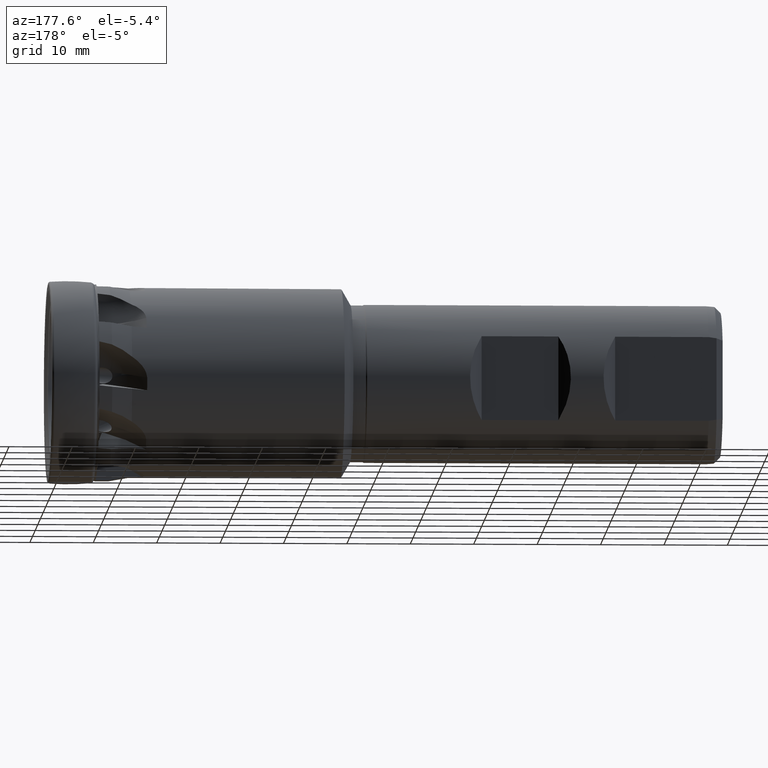
[diagram: clean part render]
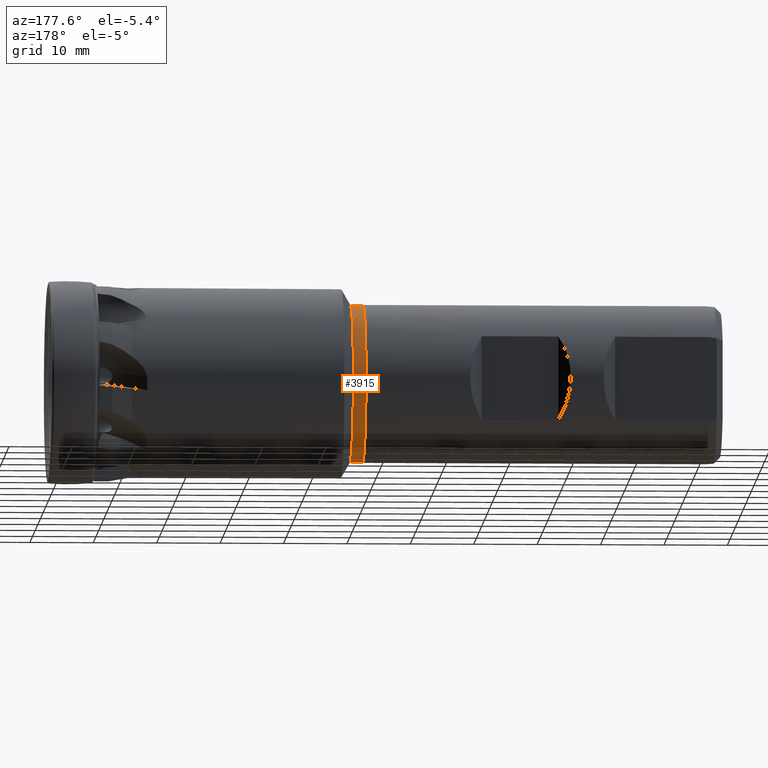
[diagram: same view with one face highlighted and labeled with its STEP entity id]
A machine part, auxiliary view. The second image highlights one B-rep face of the part: STEP entity #3915.
In plain terms, the highlighted cylindrical surface (partial cylindrical patch) has radius 12.4 mm, axis along (1, -0, -0).
Its self-contained STEP definition (entity closure, byte-faithful):
#45 = VECTOR ( 'NONE', #5534, 1000.000000000000000 ) ;
#391 = CARTESIAN_POINT ( 'NONE',  ( -49.15358983848621900, 1.518562030942717400E-015, 12.39999999999999500 ) ) ;
#1171 = DIRECTION ( 'NONE',  ( 1.000000000000000000, -0.0000000000000000000, -0.0000000000000000000 ) ) ;
#1172 = CYLINDRICAL_SURFACE ( 'NONE', #1306, 12.39999999999999500 ) ;
#1173 = FACE_OUTER_BOUND ( 'NONE', #2578, .T. ) ;
#1174 = CARTESIAN_POINT ( 'NONE',  ( 0.0000000000000000000, 0.0000000000000000000, 0.0000000000000000000 ) ) ;
#1176 = DIRECTION ( 'NONE',  ( 0.0000000000000000000, 0.0000000000000000000, -1.000000000000000000 ) ) ;
#1267 = VERTEX_POINT ( 'NONE', #2341 ) ;
#1306 = AXIS2_PLACEMENT_3D ( 'NONE', #1174, #1171, #1176 ) ;
#2341 = CARTESIAN_POINT ( 'NONE',  ( -49.15358983848621900, 0.0000000000000000000, -12.39999999999999500 ) ) ;
#2454 = CARTESIAN_POINT ( 'NONE',  ( -47.15358983848621900, 0.0000000000000000000, -12.39999999999999700 ) ) ;
#2578 = EDGE_LOOP ( 'NONE', ( #2603, #2601, #2607, #2604 ) ) ;
#2601 = ORIENTED_EDGE ( 'NONE', *, *, #4448, .T. ) ;
#2603 = ORIENTED_EDGE ( 'NONE', *, *, #4257, .T. ) ;
#2604 = ORIENTED_EDGE ( 'NONE', *, *, #4259, .F. ) ;
#2607 = ORIENTED_EDGE ( 'NONE', *, *, #4298, .F. ) ;
#2870 = VERTEX_POINT ( 'NONE', #2454 ) ;
#3049 = LINE ( 'NONE', #3056, #6526 ) ;
#3056 = CARTESIAN_POINT ( 'NONE',  ( 0.0000000000000000000, 0.0000000000000000000, -12.39999999999999500 ) ) ;
#3057 = CARTESIAN_POINT ( 'NONE',  ( -49.15358983848621900, 0.0000000000000000000, 0.0000000000000000000 ) ) ;
#3058 = DIRECTION ( 'NONE',  ( 1.000000000000000000, -0.0000000000000000000, -0.0000000000000000000 ) ) ;
#3059 = DIRECTION ( 'NONE',  ( 0.0000000000000000000, 0.0000000000000000000, -1.000000000000000000 ) ) ;
#3063 = DIRECTION ( 'NONE',  ( 1.000000000000000000, -0.0000000000000000000, -0.0000000000000000000 ) ) ;
#3261 = CARTESIAN_POINT ( 'NONE',  ( -47.15358983848621900, 0.0000000000000000000, 0.0000000000000000000 ) ) ;
#3262 = DIRECTION ( 'NONE',  ( 1.000000000000000000, -0.0000000000000000000, -0.0000000000000000000 ) ) ;
#3263 = DIRECTION ( 'NONE',  ( 0.0000000000000000000, 0.0000000000000000000, -1.000000000000000000 ) ) ;
#3564 = VERTEX_POINT ( 'NONE', #391 ) ;
#3679 = VERTEX_POINT ( 'NONE', #6708 ) ;
#3915 = ADVANCED_FACE ( 'NONE', ( #1173 ), #1172, .T. ) ;
#4257 = EDGE_CURVE ( 'NONE', #1267, #3564, #6522, .T. ) ;
#4259 = EDGE_CURVE ( 'NONE', #1267, #2870, #3049, .T. ) ;
#4298 = EDGE_CURVE ( 'NONE', #2870, #3679, #6567, .T. ) ;
#4448 = EDGE_CURVE ( 'NONE', #3564, #3679, #5532, .T. ) ;
#5532 = LINE ( 'NONE', #5533, #45 ) ;
#5533 = CARTESIAN_POINT ( 'NONE',  ( 0.0000000000000000000, 1.518562030942717400E-015, 12.39999999999999500 ) ) ;
#5534 = DIRECTION ( 'NONE',  ( 1.000000000000000000, -0.0000000000000000000, -0.0000000000000000000 ) ) ;
#6522 = CIRCLE ( 'NONE', #6525, 12.39999999999999500 ) ;
#6525 = AXIS2_PLACEMENT_3D ( 'NONE', #3057, #3058, #3059 ) ;
#6526 = VECTOR ( 'NONE', #3063, 1000.000000000000000 ) ;
#6567 = CIRCLE ( 'NONE', #6569, 12.39999999999999700 ) ;
#6569 = AXIS2_PLACEMENT_3D ( 'NONE', #3261, #3262, #3263 ) ;
#6708 = CARTESIAN_POINT ( 'NONE',  ( -47.15358983848621900, 1.675929144633152600E-015, 12.39999999999999700 ) ) ;